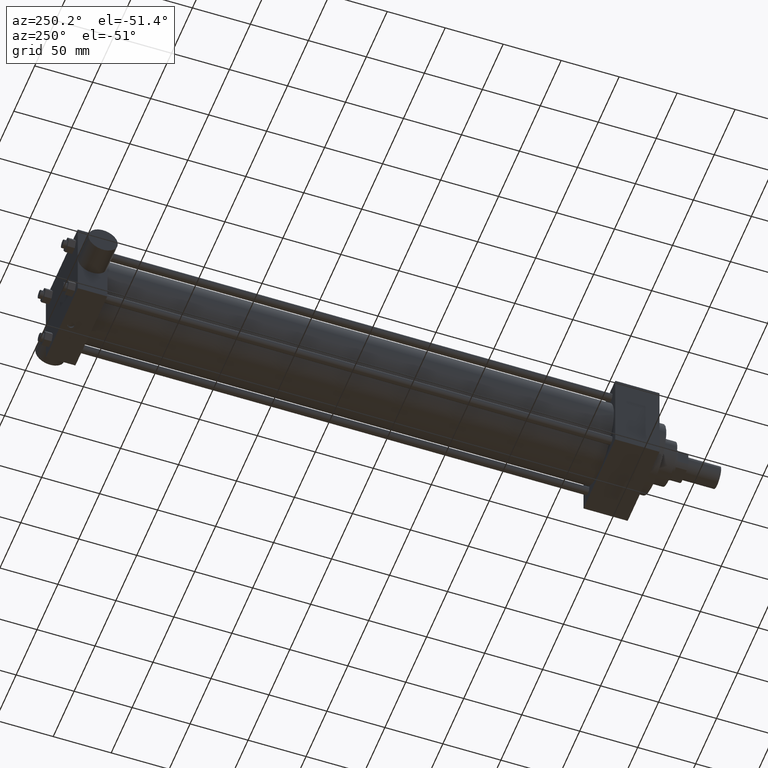
[diagram: clean part render]
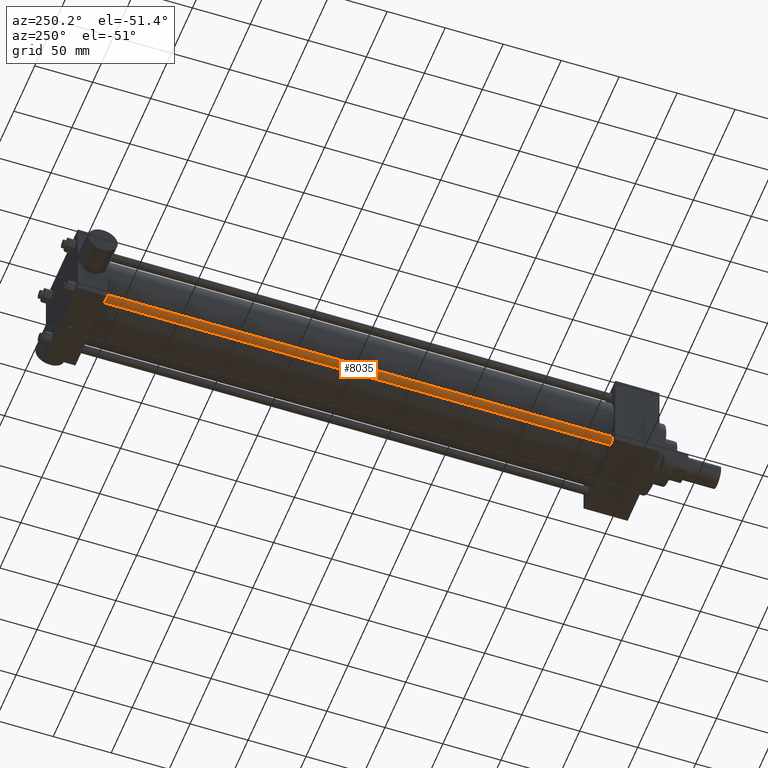
[diagram: same view with one face highlighted and labeled with its STEP entity id]
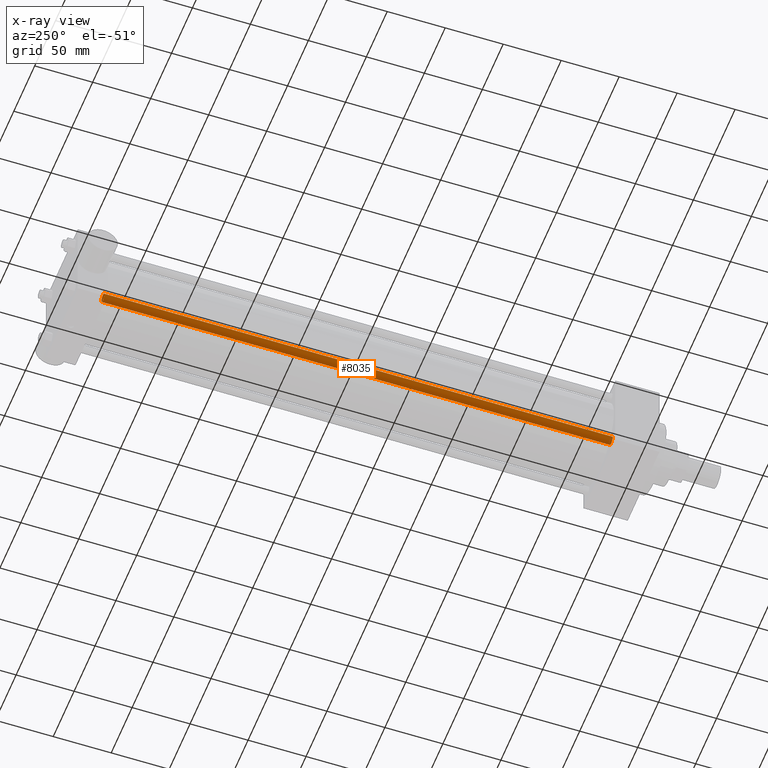
[diagram: x-ray of the same camera — body ghosted, the highlighted face saturated]
A machine part, auxiliary view. The second image highlights one B-rep face of the part: STEP entity #8035.
The next image is the same camera in x-ray: the body ghosted, the highlighted face saturated — about 0% of this face is hidden behind the body in this view.
In plain terms, the highlighted cylindrical surface (bore or boss wall) has radius 3.5687 mm, axis along (0, -1, 0).
Its self-contained STEP definition (entity closure, byte-faithful):
#529=EDGE_CURVE('',#535,#535,#530,.T.);
#530=CIRCLE('',#531,3.568700000E+000);
#531=AXIS2_PLACEMENT_3D('',#532,#533,#534);
#532=CARTESIAN_POINT('',(-2.781300000E+001,7.302500000E+001,-2.781300000E+001));
#533=DIRECTION('',(0.0E+000,1.0E+000,0.0E+000));
#534=DIRECTION('',(1.0E+000,0.0E+000,0.0E+000));
#535=VERTEX_POINT('',#536);
#536=CARTESIAN_POINT('',(-2.424430000E+001,7.302500000E+001,-2.781300000E+001));
#1390=FACE_OUTER_BOUND('',#1392,.T.);
#1391=FACE_BOUND('',#1393,.T.);
#1392=EDGE_LOOP('',(#1394));
#1393=EDGE_LOOP('',(#1395));
#1394=ORIENTED_EDGE('',*,*,#1439,.F.);
#1395=ORIENTED_EDGE('',*,*,#529,.T.);
#1396=CYLINDRICAL_SURFACE('',#1397,3.568700000E+000);
#1397=AXIS2_PLACEMENT_3D('',#1398,#1399,#1400);
#1398=CARTESIAN_POINT('',(-2.781300000E+001,5.111750000E+002,-2.781300000E+001));
#1399=DIRECTION('',(0.0E+000,-1.0E+000,0.0E+000));
#1400=DIRECTION('',(0.0E+000,0.0E+000,-1.0E+000));
#1439=EDGE_CURVE('',#1445,#1445,#1440,.T.);
#1440=CIRCLE('',#1441,3.568700000E+000);
#1441=AXIS2_PLACEMENT_3D('',#1442,#1443,#1444);
#1442=CARTESIAN_POINT('',(-2.781300000E+001,5.111750000E+002,-2.781300000E+001));
#1443=DIRECTION('',(0.0E+000,1.0E+000,0.0E+000));
#1444=DIRECTION('',(1.0E+000,0.0E+000,0.0E+000));
#1445=VERTEX_POINT('',#1446);
#1446=CARTESIAN_POINT('',(-2.424430000E+001,5.111750000E+002,-2.781300000E+001));
#8035=ADVANCED_FACE('',(#1390,#1391),#1396,.T.);